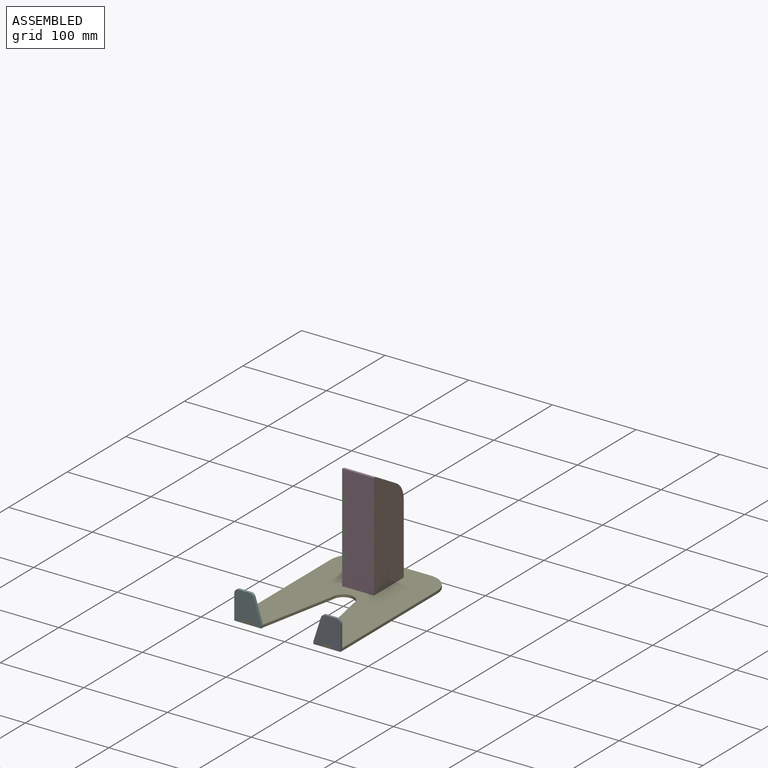
[diagram: assembled view]
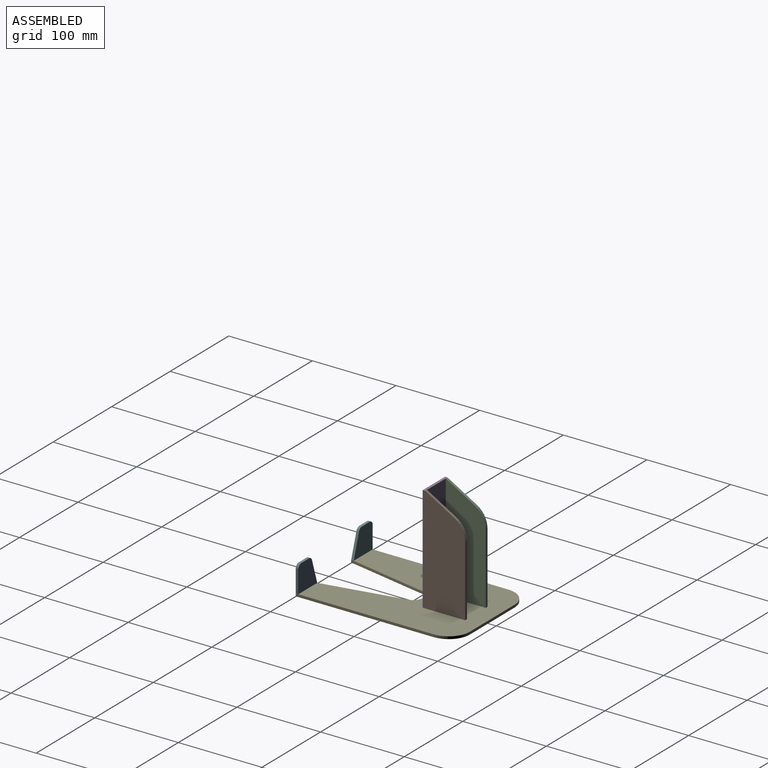
[diagram: assembled view, second angle]
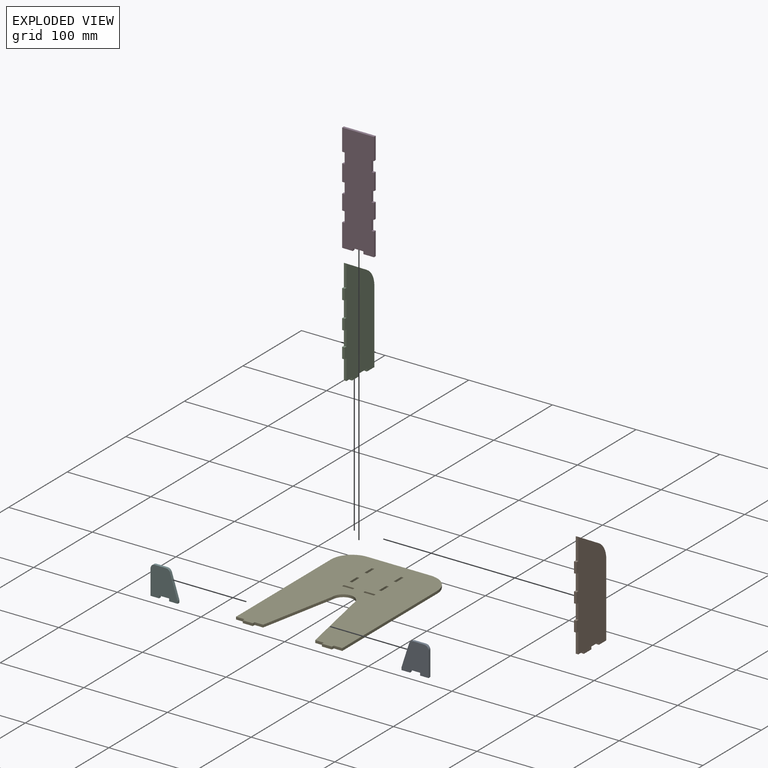
[diagram: exploded view]
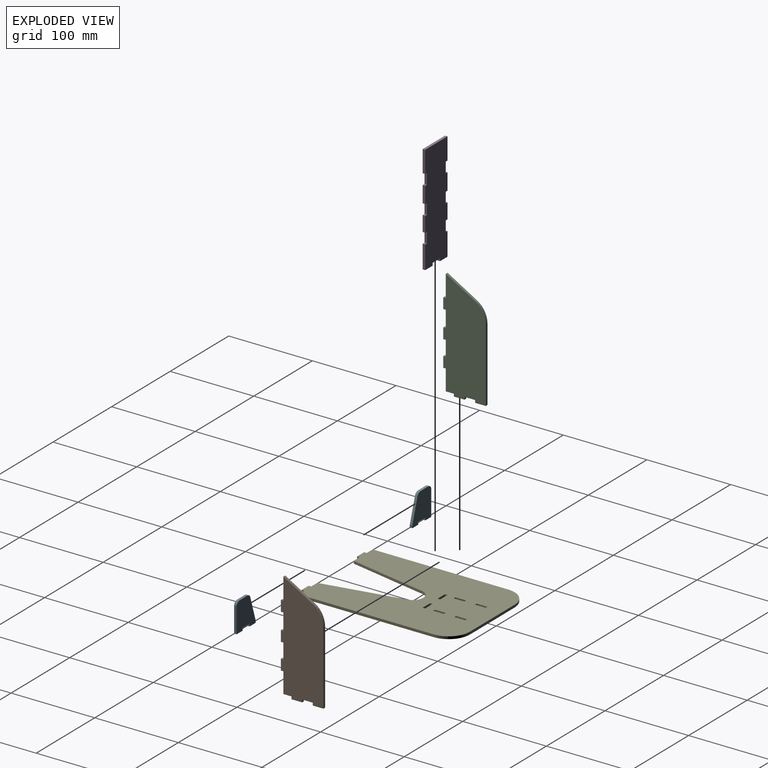
[diagram: exploded view, second angle]
ASSEMBLY  parts=6 mates=5
PART A: 13 faces, bbox 32.4x3x34.8 mm
  f0: plane 29.72x3.05mm, normal (-1,0,0), area 90.6mm2, adj f1,f9,f10,f12
  f1: plane 10.16x3.05mm, normal (0,0,-1), area 31mm2, adj f0,f2,f9,f10
  f2: plane 3.05x3.05mm, normal (1,0,0), area 9.3mm2, adj f1,f3,f9,f10
  f3: plane 12.04x3.05mm, normal (0,0,-1), area 36.7mm2, adj f2,f4,f9,f10
  f4: plane 3.05x3.05mm, normal (-1,0,0), area 9.3mm2, adj f3,f5,f9,f10
  f5: plane 10.16x3.05mm, normal (0,0,-1), area 31mm2, adj f4,f6,f9,f10
  f6: plane 3.05x3.05mm, normal (1,0,0), area 9.3mm2, adj f5,f7,f9,f10
  f7: plane 28.22x9.03mm, normal (0.95,0,0.3), area 90.3mm2, adj f6,f9,f10,f11
  f8: plane 13.41x3.05mm, normal (0,0,1), area 40.9mm2, adj f9,f10,f11,f12
  f9: plane 34.8x32.36mm, normal (0,-1,0), area 920mm2, adj f0,f1,f2,f3,f4,f5,f6,f7
  f10: plane 34.8x32.36mm, normal (0,1,0), area 920mm2, adj f0,f1,f2,f3,f4,f5,f6,f7
  f11: cylinder r=5.08mm len=4.84mm, axis (0,1,0), area 19.5mm2, adj f7,f8,f9,f10
  f12: cylinder r=5.08mm len=5.08mm, axis (0,-1,0), area 24.3mm2, adj f0,f8,f9,f10
PART B: 25 faces, bbox 3x50.8x130 mm
  f0: plane 3.05x3.05mm, normal (0,1,0), area 9.3mm2, adj f1,f20,f21,f22
  f1: plane 12.7x3.05mm, normal (0,0,-1), area 38.7mm2, adj f0,f2,f21,f22
  f2: plane 3.05x3.05mm, normal (0,-1,0), area 9.3mm2, adj f1,f3,f21,f22
  f3: plane 12.7x3.05mm, normal (0,0,-1), area 38.7mm2, adj f2,f4,f21,f22
  f4: plane 87.81x3.05mm, normal (0,1,0), area 267.7mm2, adj f3,f21,f22,f24
  f5: plane 26.16x3.05mm, normal (0,-1,0), area 79.7mm2, adj f6,f21,f22,f23
  f6: plane 3.05x3.05mm, normal (0,0,1), area 9.3mm2, adj f5,f7,f21,f22
  f7: plane 12.7x3.05mm, normal (0,-1,0), area 38.7mm2, adj f6,f8,f21,f22
  f8: plane 3.05x3.05mm, normal (0,0,-1), area 9.3mm2, adj f7,f9,f21,f22
  f9: plane 19.81x3.05mm, normal (0,-1,0), area 60.4mm2, adj f8,f10,f21,f22
  f10: plane 3.05x3.05mm, normal (0,0,1), area 9.3mm2, adj f9,f11,f21,f22
  f11: plane 12.7x3.05mm, normal (0,-1,0), area 38.7mm2, adj f10,f12,f21,f22
  f12: plane 3.05x3.05mm, normal (0,0,-1), area 9.3mm2, adj f11,f13,f21,f22
  f13: plane 18.29x3.05mm, normal (0,-1,0), area 55.7mm2, adj f12,f14,f21,f22
  f14: plane 3.05x3.05mm, normal (0,0,1), area 9.3mm2, adj f13,f15,f21,f22
  f15: plane 12.7x3.05mm, normal (0,-1,0), area 38.7mm2, adj f14,f16,f21,f22
  f16: plane 3.05x3.05mm, normal (0,0,-1), area 9.3mm2, adj f15,f17,f21,f22
  f17: plane 24.64x3.05mm, normal (0,-1,0), area 75.1mm2, adj f16,f18,f21,f22
  f18: plane 9.65x3.05mm, normal (0,0,-1), area 29.4mm2, adj f17,f19,f21,f22
  f19: plane 3.05x3.05mm, normal (0,-1,0), area 9.3mm2, adj f18,f20,f21,f22
  f20: plane 12.7x3.05mm, normal (0,0,-1), area 38.7mm2, adj f0,f19,f21,f22
  f21: plane 130.05x50.8mm, normal (1,0,0), area 5565.1mm2, adj f0,f1,f2,f3,f4,f5,f6,f7
  f22: plane 130.05x50.8mm, normal (-1,0,0), area 5565.1mm2, adj f0,f1,f2,f3,f4,f5,f6,f7
  f23: plane 35.05x20.24mm, normal (0,0.5,0.87), area 123.4mm2, adj f5,f21,f22,f24
  f24: cylinder r=25.4mm len=22mm, axis (1,0,0), area 81.1mm2, adj f4,f21,f22,f23
PART C: same geometry as B
PART D: 34 faces, bbox 38.1x3x130 mm
  f0: plane 3.05x3.05mm, normal (1,0,0), area 9.3mm2, adj f1,f31,f32,f33
  f1: plane 12.7x3.05mm, normal (0,0,-1), area 38.7mm2, adj f0,f2,f32,f33
  f2: plane 3.05x3.05mm, normal (-1,0,0), area 9.3mm2, adj f1,f3,f32,f33
  f3: plane 12.7x3.05mm, normal (0,0,-1), area 38.7mm2, adj f2,f4,f32,f33
  f4: plane 27.69x3.05mm, normal (1,0,0), area 84.4mm2, adj f3,f5,f32,f33
  f5: plane 3.05x3.05mm, normal (0,0,1), area 9.3mm2, adj f4,f6,f32,f33
  f6: plane 12.7x3.05mm, normal (1,0,0), area 38.7mm2, adj f5,f7,f32,f33
  f7: plane 3.05x3.05mm, normal (0,0,-1), area 9.3mm2, adj f6,f8,f32,f33
  f8: plane 18.29x3.05mm, normal (1,0,0), area 55.7mm2, adj f7,f9,f32,f33
  f9: plane 3.05x3.05mm, normal (0,0,1), area 9.3mm2, adj f8,f10,f32,f33
  f10: plane 12.7x3.05mm, normal (1,0,0), area 38.7mm2, adj f9,f11,f32,f33
  f11: plane 3.05x3.05mm, normal (0,0,-1), area 9.3mm2, adj f10,f12,f32,f33
  f12: plane 19.81x3.05mm, normal (1,0,0), area 60.4mm2, adj f11,f13,f32,f33
  f13: plane 3.05x3.05mm, normal (0,0,1), area 9.3mm2, adj f12,f14,f32,f33
  f14: plane 12.7x3.05mm, normal (1,0,0), area 38.7mm2, adj f13,f15,f32,f33
  f15: plane 3.05x3.05mm, normal (0,0,-1), area 9.3mm2, adj f14,f16,f32,f33
  f16: plane 26.16x3.05mm, normal (1,0,0), area 79.7mm2, adj f15,f17,f32,f33
  f17: plane 38.1x3.05mm, normal (0,0,1), area 116.1mm2, adj f16,f18,f32,f33
  f18: plane 26.16x3.05mm, normal (-1,0,0), area 79.7mm2, adj f17,f19,f32,f33
  f19: plane 3.05x3.05mm, normal (0,0,-1), area 9.3mm2, adj f18,f20,f32,f33
  f20: plane 12.7x3.05mm, normal (-1,0,0), area 38.7mm2, adj f19,f21,f32,f33
  f21: plane 3.05x3.05mm, normal (0,0,1), area 9.3mm2, adj f20,f22,f32,f33
  f22: plane 19.81x3.05mm, normal (-1,0,0), area 60.4mm2, adj f21,f23,f32,f33
  f23: plane 3.05x3.05mm, normal (0,0,-1), area 9.3mm2, adj f22,f24,f32,f33
  f24: plane 12.7x3.05mm, normal (-1,0,0), area 38.7mm2, adj f23,f25,f32,f33
  f25: plane 3.05x3.05mm, normal (0,0,1), area 9.3mm2, adj f24,f26,f32,f33
  f26: plane 18.29x3.05mm, normal (-1,0,0), area 55.7mm2, adj f25,f27,f32,f33
  f27: plane 3.05x3.05mm, normal (0,0,-1), area 9.3mm2, adj f26,f28,f32,f33
  f28: plane 12.7x3.05mm, normal (-1,0,0), area 38.7mm2, adj f27,f29,f32,f33
  f29: plane 3.05x3.05mm, normal (0,0,1), area 9.3mm2, adj f28,f30,f32,f33
  f30: plane 27.69x3.05mm, normal (-1,0,0), area 84.4mm2, adj f29,f31,f32,f33
  f31: plane 12.7x3.05mm, normal (0,0,-1), area 38.7mm2, adj f0,f30,f32,f33
  f32: plane 130.05x38.1mm, normal (0,-1,0), area 4683.9mm2, adj f0,f1,f2,f3,f4,f5,f6,f7
  f33: plane 130.05x38.1mm, normal (0,1,0), area 4683.9mm2, adj f0,f1,f2,f3,f4,f5,f6,f7
PART E: 46 faces, bbox 127x190.5x3 mm
  f0: plane 10.16x3.05mm, normal (0,-1,0), area 31mm2, adj f1,f39,f40,f41
  f1: plane 162.05x3.05mm, normal (1,0,0), area 493.9mm2, adj f0,f40,f41,f42
  f2: plane 76.2x3.05mm, normal (0,1,0), area 232.3mm2, adj f40,f41,f42,f43
  f3: plane 162.05x3.05mm, normal (-1,0,0), area 493.9mm2, adj f4,f40,f41,f43
  f4: plane 10.16x3.05mm, normal (0,-1,0), area 31mm2, adj f3,f5,f40,f41
  f5: plane 3.05x3.05mm, normal (-1,0,0), area 9.3mm2, adj f4,f6,f40,f41
  f6: plane 12.04x3.05mm, normal (0,-1,0), area 36.7mm2, adj f5,f7,f40,f41
  f7: plane 3.05x3.05mm, normal (1,0,0), area 9.3mm2, adj f6,f8,f40,f41
  f8: plane 10.16x3.05mm, normal (0,-1,0), area 31mm2, adj f7,f9,f40,f41
  f9: plane 90.4x18.08mm, normal (0.98,-0.2,0), area 281mm2, adj f8,f40,f41,f44
  f10: cylinder r=12.7mm len=25.31mm, axis (0,0,-1), area 115.1mm2, adj f40,f41,f44,f45
  f11: plane 90.4x18.08mm, normal (-0.98,-0.2,0), area 281mm2, adj f12,f40,f41,f45
  f12: plane 10.16x3.05mm, normal (0,-1,0), area 31mm2, adj f11,f13,f40,f41
  f13: plane 3.05x3.05mm, normal (-1,0,0), area 9.3mm2, adj f12,f14,f40,f41
  f14: plane 12.04x3.05mm, normal (0,-1,0), area 36.7mm2, adj f13,f39,f40,f41
  f15: plane 3.05x3.05mm, normal (-1,0,0), area 9.3mm2, adj f16,f33,f40,f41
  f16: plane 12.7x3.05mm, normal (0,1,0), area 38.7mm2, adj f15,f17,f40,f41
  f17: plane 3.05x3.05mm, normal (1,0,0), area 9.3mm2, adj f16,f33,f40,f41
  f18: plane 3.05x3.05mm, normal (-1,0,0), area 9.3mm2, adj f19,f34,f40,f41
  f19: plane 12.7x3.05mm, normal (0,1,0), area 38.7mm2, adj f18,f20,f40,f41
  f20: plane 3.05x3.05mm, normal (1,0,0), area 9.3mm2, adj f19,f34,f40,f41
  f21: plane 12.7x3.05mm, normal (1,0,0), area 38.7mm2, adj f22,f35,f40,f41
  f22: plane 3.05x3.05mm, normal (0,-1,0), area 9.3mm2, adj f21,f23,f40,f41
  f23: plane 12.7x3.05mm, normal (-1,0,0), area 38.7mm2, adj f22,f35,f40,f41
  f24: plane 12.7x3.05mm, normal (1,0,0), area 38.7mm2, adj f25,f36,f40,f41
  f25: plane 3.05x3.05mm, normal (0,-1,0), area 9.3mm2, adj f24,f26,f40,f41
  f26: plane 12.7x3.05mm, normal (-1,0,0), area 38.7mm2, adj f25,f36,f40,f41
  f27: plane 12.7x3.05mm, normal (1,0,0), area 38.7mm2, adj f28,f37,f40,f41
  f28: plane 3.05x3.05mm, normal (0,-1,0), area 9.3mm2, adj f27,f29,f40,f41
  f29: plane 12.7x3.05mm, normal (-1,0,0), area 38.7mm2, adj f28,f37,f40,f41
  f30: plane 3.05x3.05mm, normal (0,-1,0), area 9.3mm2, adj f31,f38,f40,f41
  f31: plane 12.7x3.05mm, normal (-1,0,0), area 38.7mm2, adj f30,f32,f40,f41
  f32: plane 3.05x3.05mm, normal (0,1,0), area 9.3mm2, adj f31,f38,f40,f41
  f33: plane 12.7x3.05mm, normal (0,-1,0), area 38.7mm2, adj f15,f17,f40,f41
  f34: plane 12.7x3.05mm, normal (0,-1,0), area 38.7mm2, adj f18,f20,f40,f41
  f35: plane 3.05x3.05mm, normal (0,1,0), area 9.3mm2, adj f21,f23,f40,f41
  f36: plane 3.05x3.05mm, normal (0,1,0), area 9.3mm2, adj f24,f26,f40,f41
  f37: plane 3.05x3.05mm, normal (0,1,0), area 9.3mm2, adj f27,f29,f40,f41
  f38: plane 12.7x3.05mm, normal (1,0,0), area 38.7mm2, adj f30,f32,f40,f41
  f39: plane 3.05x3.05mm, normal (1,0,0), area 9.3mm2, adj f0,f14,f40,f41
  f40: plane 190.5x127mm, normal (0,0,1), area 19075mm2, adj f0,f1,f2,f3,f4,f5,f6,f7
  f41: plane 190.5x127mm, normal (0,0,-1), area 19075mm2, adj f0,f1,f2,f3,f4,f5,f6,f7
  f42: cylinder r=25.4mm len=25.4mm, axis (0,0,-1), area 121.6mm2, adj f1,f2,f40,f41
  f43: cylinder r=25.4mm len=25.4mm, axis (0,0,1), area 121.6mm2, adj f2,f3,f40,f41
  f44: cylinder r=25.4mm len=3.05mm, axis (0,0,-1), area 8.8mm2, adj f9,f10,f40,f41
  f45: cylinder r=25.4mm len=3.05mm, axis (0,0,-1), area 8.8mm2, adj f10,f11,f40,f41
PART F: same geometry as A
PLACE A rot(axis=(0,0,-1),180deg) t=(47.32,-95.25,17.4)mm
PLACE B t=(16,52.32,65.02)mm
PLACE C t=(-19.05,52.32,65.02)mm
PLACE D t=(0,28.45,65.02)mm
PLACE E at identity
PLACE F t=(-47.32,-92.2,17.4)mm
MATE planar D.f3 <-> E.f41  axis (0,0,-1) through (12.7,26.92,0)mm
MATE planar B.f20 <-> E.f41  axis (0,0,-1) through (17.53,44.45,0)mm
MATE planar A.f2 <-> E.f39  axis (-1,0,0) through (53.34,-93.73,1.52)mm
MATE planar C.f20 <-> E.f41  axis (0,0,-1) through (-17.53,44.45,0)mm
MATE planar F.f2 <-> E.f5  axis (1,0,0) through (-53.34,-93.73,1.52)mm
